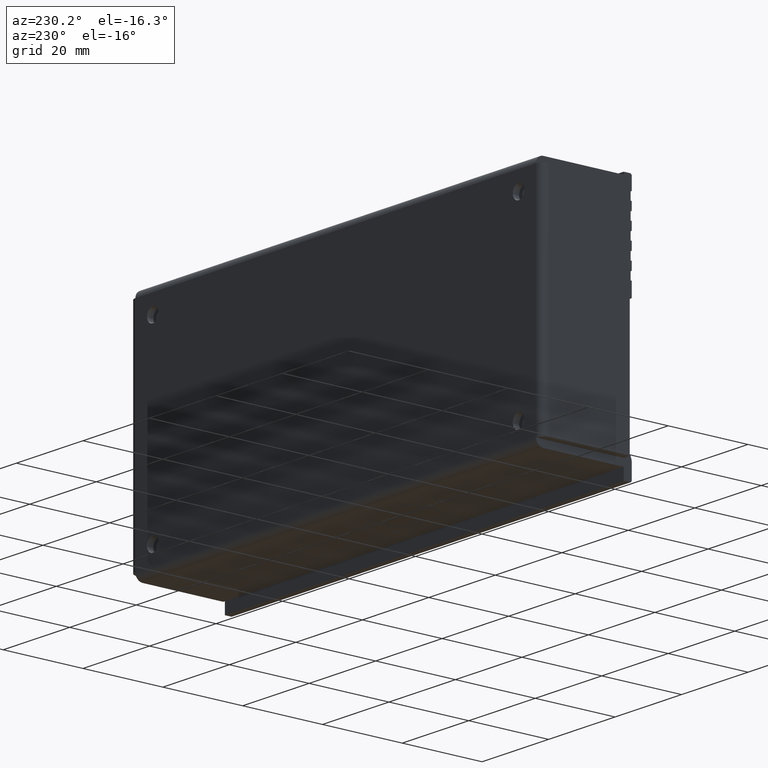
[diagram: clean part render]
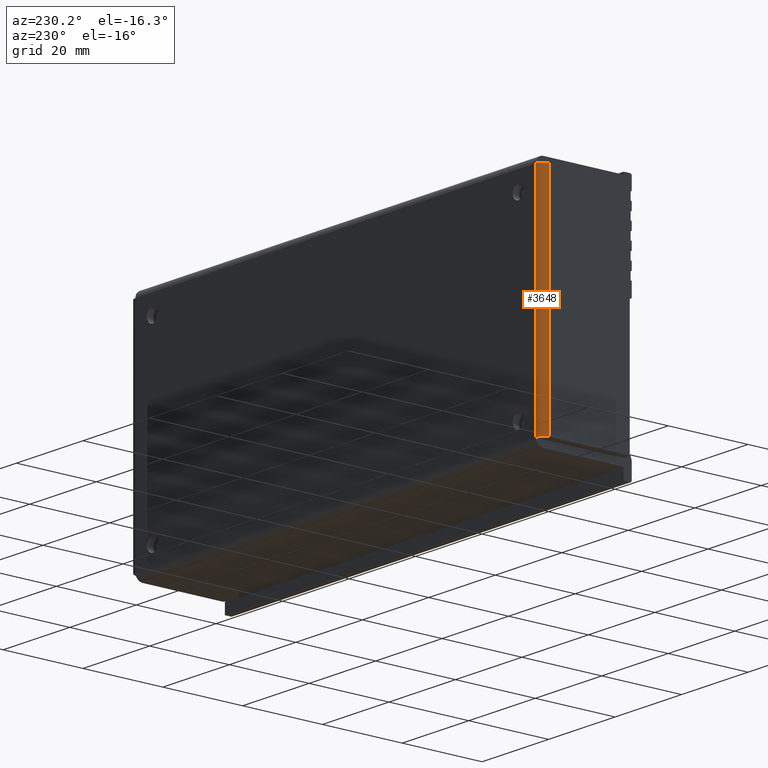
[diagram: same view with one face highlighted and labeled with its STEP entity id]
A machine part, auxiliary view. The second image highlights one B-rep face of the part: STEP entity #3648.
In plain terms, the highlighted face is a freeform B-spline surface patch.
Its self-contained STEP definition (entity closure, byte-faithful):
#3588=CARTESIAN_POINT('',(-60.234292236102931,-0.000068538484517,28.875000000000000));
#3589=CARTESIAN_POINT('',(-60.234292236102931,-0.000068538484517,-28.909375000000001));
#3590=CARTESIAN_POINT('',(-62.164482415621180,0.016775976023162,28.875000000000007));
#3591=CARTESIAN_POINT('',(-62.164482415621180,0.016775976023162,-28.909374999999997));
#3592=CARTESIAN_POINT('',(-62.046642637159373,-1.909887371162768,28.875000000000000));
#3593=CARTESIAN_POINT('',(-62.046642637159373,-1.909887371162768,-28.909375000000001));
#3601=(BOUNDED_SURFACE()B_SPLINE_SURFACE(1,2,((#3588,#3590,#3592),(#3589,#3591,#3593)),.UNSPECIFIED.,.F.,.F.,.U.)B_SPLINE_SURFACE_WITH_KNOTS((2,2),(3,3),(0.0,57.784374999999997),(0.0,3.130649099718734),.UNSPECIFIED.)GEOMETRIC_REPRESENTATION_ITEM()RATIONAL_B_SPLINE_SURFACE(((1.0,0.681998360062499,1.0),(1.0,0.681998360062499,1.0)))REPRESENTATION_ITEM('')SURFACE());
#3602=CARTESIAN_POINT('',(-60.250000000000000,0.0,27.500000000000000));
#3603=VERTEX_POINT('',#3602);
#3604=CARTESIAN_POINT('',(-62.049999999999997,-1.800000000000025,27.500000000000000));
#3605=VERTEX_POINT('',#3604);
#3606=CARTESIAN_POINT('',(-60.250000000000000,-2.493665E-014,27.500000000000000));
#3607=CARTESIAN_POINT('',(-62.050000000000018,-2.493665E-014,27.499999999999993));
#3608=CARTESIAN_POINT('',(-62.049999999999997,-1.800000000000025,27.500000000000000));
#3616=(BOUNDED_CURVE()B_SPLINE_CURVE(2,(#3606,#3607,#3608),.UNSPECIFIED.,.F.,.U.)CURVE()GEOMETRIC_REPRESENTATION_ITEM()QUASI_UNIFORM_CURVE()RATIONAL_B_SPLINE_CURVE((1.0,0.707106781186547,1.0))REPRESENTATION_ITEM(''));
#3617=EDGE_CURVE('',#3603,#3605,#3616,.T.);
#3618=ORIENTED_EDGE('',*,*,#3617,.F.);
#3619=CARTESIAN_POINT('',(-60.250000000000000,1.709743E-014,-27.500000000000000));
#3620=VERTEX_POINT('',#3619);
#3621=CARTESIAN_POINT('',(-60.250000000000000,1.709743E-014,-27.500000000000000));
#3622=CARTESIAN_POINT('',(-60.250000000000000,0.0,27.500000000000000));
#3623=QUASI_UNIFORM_CURVE('',1,(#3621,#3622),.UNSPECIFIED.,.F.,.U.);
#3624=EDGE_CURVE('',#3620,#3603,#3623,.T.);
#3625=ORIENTED_EDGE('',*,*,#3624,.F.);
#3626=CARTESIAN_POINT('',(-62.049999999999997,-1.800000000000025,-27.500000000000000));
#3627=VERTEX_POINT('',#3626);
#3628=CARTESIAN_POINT('',(-62.049999999999997,-1.800000000000025,-27.500000000000000));
#3629=CARTESIAN_POINT('',(-62.050000000000018,-2.493665E-014,-27.499999999999993));
#3630=CARTESIAN_POINT('',(-60.250000000000000,-2.493665E-014,-27.500000000000000));
#3638=(BOUNDED_CURVE()B_SPLINE_CURVE(2,(#3628,#3629,#3630),.UNSPECIFIED.,.F.,.U.)CURVE()GEOMETRIC_REPRESENTATION_ITEM()QUASI_UNIFORM_CURVE()RATIONAL_B_SPLINE_CURVE((1.0,0.707106781186547,1.0))REPRESENTATION_ITEM(''));
#3639=EDGE_CURVE('',#3627,#3620,#3638,.T.);
#3640=ORIENTED_EDGE('',*,*,#3639,.F.);
#3641=CARTESIAN_POINT('',(-62.049999999999997,-1.800000000000025,27.500000000000000));
#3642=CARTESIAN_POINT('',(-62.049999999999997,-1.800000000000025,-27.500000000000000));
#3643=QUASI_UNIFORM_CURVE('',1,(#3641,#3642),.UNSPECIFIED.,.F.,.U.);
#3644=EDGE_CURVE('',#3605,#3627,#3643,.T.);
#3645=ORIENTED_EDGE('',*,*,#3644,.F.);
#3646=EDGE_LOOP('',(#3618,#3625,#3640,#3645));
#3647=FACE_OUTER_BOUND('',#3646,.T.);
#3648=ADVANCED_FACE('',(#3647),#3601,.T.);